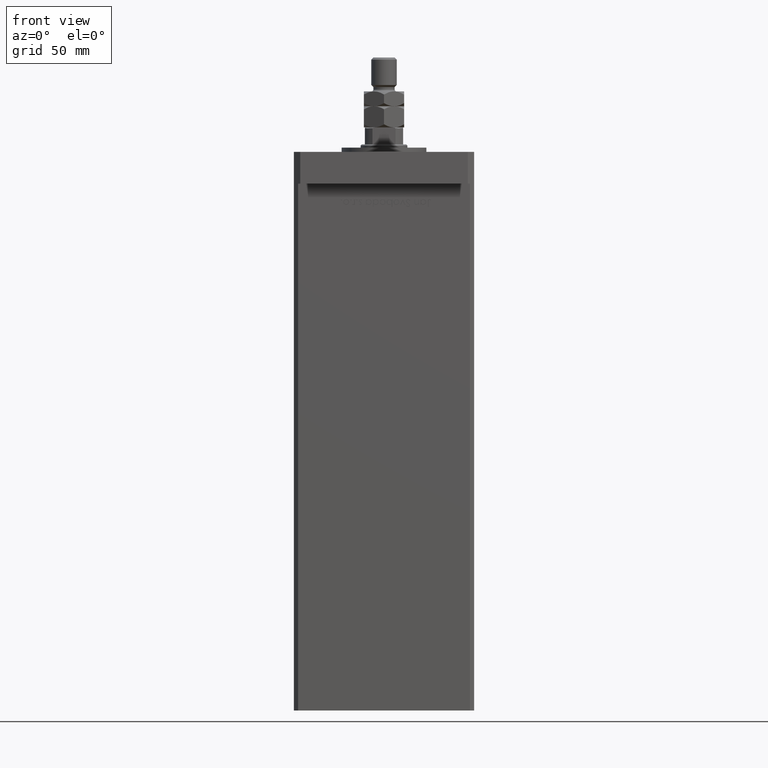
[diagram: clean part render]
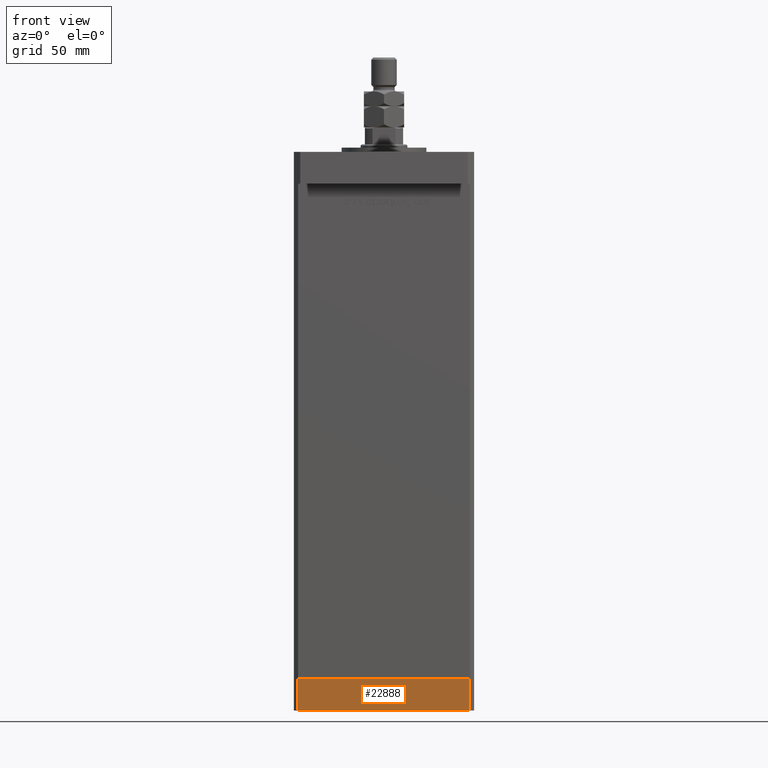
[diagram: same view with one face highlighted and labeled with its STEP entity id]
A machine part, front view. The second image highlights one B-rep face of the part: STEP entity #22888.
In plain terms, the highlighted planar face has unit normal (-0, -1, -0).
Its self-contained STEP definition (entity closure, byte-faithful):
#866 = CARTESIAN_POINT ( 'NONE',  ( 40.50000000000000000, -37.50000000000000711, -15.00000000000000000 ) ) ;
#2976 = VECTOR ( 'NONE', #35435, 1000.000000000000000 ) ;
#3146 = DIRECTION ( 'NONE',  ( 0.000000000000000000, 0.000000000000000000, 1.000000000000000000 ) ) ;
#4351 = VECTOR ( 'NONE', #3146, 1000.000000000000000 ) ;
#4558 = VECTOR ( 'NONE', #6349, 1000.000000000000000 ) ;
#5835 = ORIENTED_EDGE ( 'NONE', *, *, #36044, .F. ) ;
#5867 = EDGE_CURVE ( 'NONE', #37585, #41288, #24027, .T. ) ;
#6338 = PLANE ( 'NONE',  #39203 ) ;
#6349 = DIRECTION ( 'NONE',  ( 0.000000000000000000, 0.000000000000000000, 1.000000000000000000 ) ) ;
#8610 = CARTESIAN_POINT ( 'NONE',  ( 40.50000000000000000, -37.50000000000000711, -15.00000000000000000 ) ) ;
#8653 = ORIENTED_EDGE ( 'NONE', *, *, #5867, .T. ) ;
#10526 = DIRECTION ( 'NONE',  ( 1.000000000000000000, 1.713307136767217096E-16, 0.000000000000000000 ) ) ;
#10536 = LINE ( 'NONE', #866, #4558 ) ;
#11190 = CARTESIAN_POINT ( 'NONE',  ( -40.49999999999999289, -37.50000000000002132, -15.00000000000000000 ) ) ;
#11741 = DIRECTION ( 'NONE',  ( 1.000000000000000000, 1.713307136767217096E-16, 0.000000000000000000 ) ) ;
#12279 = CARTESIAN_POINT ( 'NONE',  ( -40.49999999999999289, -37.50000000000002132, -15.00000000000000000 ) ) ;
#13429 = EDGE_LOOP ( 'NONE', ( #5835, #18492, #8653, #17872 ) ) ;
#14259 = CARTESIAN_POINT ( 'NONE',  ( -40.49999999999999289, -37.50000000000002132, 0.000000000000000000 ) ) ;
#15724 = CARTESIAN_POINT ( 'NONE',  ( -40.49999999999999289, -37.50000000000002132, -15.00000000000000000 ) ) ;
#17872 = ORIENTED_EDGE ( 'NONE', *, *, #45901, .T. ) ;
#18448 = LINE ( 'NONE', #14259, #2976 ) ;
#18492 = ORIENTED_EDGE ( 'NONE', *, *, #20976, .F. ) ;
#20703 = CARTESIAN_POINT ( 'NONE',  ( 40.50000000000000000, -37.50000000000000711, 0.000000000000000000 ) ) ;
#20976 = EDGE_CURVE ( 'NONE', #37585, #39767, #29082, .T. ) ;
#22888 = ADVANCED_FACE ( 'NONE', ( #45391 ), #6338, .T. ) ;
#23275 = VECTOR ( 'NONE', #11741, 1000.000000000000000 ) ;
#24027 = LINE ( 'NONE', #12279, #23275 ) ;
#29082 = LINE ( 'NONE', #15724, #4351 ) ;
#31505 = CARTESIAN_POINT ( 'NONE',  ( -40.49999999999999289, -37.50000000000002132, 0.000000000000000000 ) ) ;
#35435 = DIRECTION ( 'NONE',  ( 1.000000000000000000, 1.713307136767217096E-16, 0.000000000000000000 ) ) ;
#36044 = EDGE_CURVE ( 'NONE', #39767, #39675, #18448, .T. ) ;
#37585 = VERTEX_POINT ( 'NONE', #11190 ) ;
#39203 = AXIS2_PLACEMENT_3D ( 'NONE', #53779, #40929, #10526 ) ;
#39675 = VERTEX_POINT ( 'NONE', #20703 ) ;
#39767 = VERTEX_POINT ( 'NONE', #31505 ) ;
#40929 = DIRECTION ( 'NONE',  ( 1.713307136767217096E-16, -1.000000000000000000, 0.000000000000000000 ) ) ;
#41288 = VERTEX_POINT ( 'NONE', #8610 ) ;
#45391 = FACE_OUTER_BOUND ( 'NONE', #13429, .T. ) ;
#45901 = EDGE_CURVE ( 'NONE', #41288, #39675, #10536, .T. ) ;
#53779 = CARTESIAN_POINT ( 'NONE',  ( -40.49999999999999289, -37.50000000000002132, -15.00000000000000000 ) ) ;